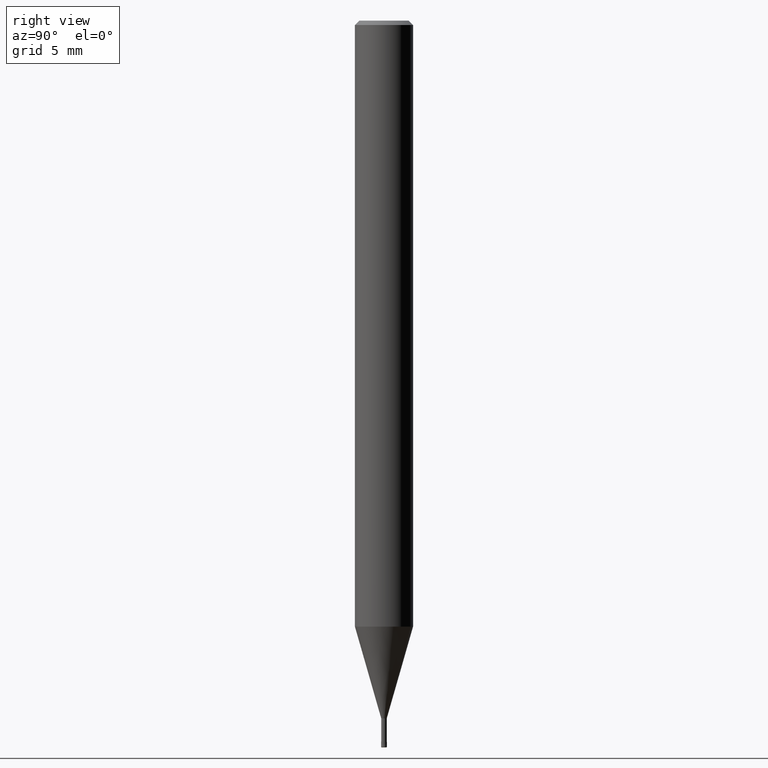
[diagram: clean part render]
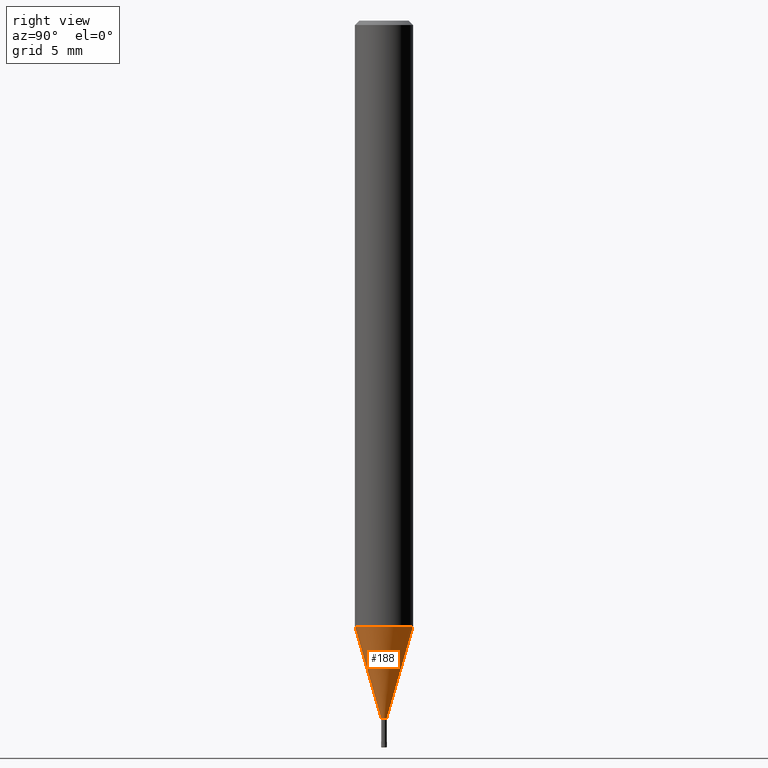
[diagram: same view with one face highlighted and labeled with its STEP entity id]
A machine part, right view. The second image highlights one B-rep face of the part: STEP entity #188.
In plain terms, the highlighted conical surface has half-angle 16.001 deg.
Its self-contained STEP definition (entity closure, byte-faithful):
#110=EDGE_CURVE('',#192,#222,#265,.T.);
#114=EDGE_CURVE('',#192,#148,#269,.T.);
#130=EDGE_CURVE('',#148,#158,#287,.T.);
#148=VERTEX_POINT('',#307);
#158=VERTEX_POINT('',#317);
#188=ADVANCED_FACE('',(#350),#351,.T.);
#192=VERTEX_POINT('',#355);
#222=VERTEX_POINT('',#392);
#224=EDGE_CURVE('',#158,#222,#394,.T.);
#265=CIRCLE('',#434,1.99995);
#269=LINE('',#439,#440);
#287=CIRCLE('',#464,0.18995);
#307=CARTESIAN_POINT('',(0.0,0.18995,-48.0));
#317=CARTESIAN_POINT('',(2.3261397690856E-017,-0.18995,-48.0));
#350=FACE_OUTER_BOUND('',#542,.T.);
#351=CONICAL_SURFACE('',#543,1.09495,0.279261921280279);
#355=CARTESIAN_POINT('',(0.0,1.99995,-41.688));
#392=CARTESIAN_POINT('',(2.44915147732706E-016,-1.99995,-41.688));
#394=LINE('',#595,#596);
#434=AXIS2_PLACEMENT_3D('',#624,#625,#626);
#439=CARTESIAN_POINT('',(-1.34088272711781E-016,1.09495,-44.844));
#440=VECTOR('',#627,1.0);
#464=AXIS2_PLACEMENT_3D('',#652,#653,#654);
#542=EDGE_LOOP('',(#725,#726,#727,#728));
#543=AXIS2_PLACEMENT_3D('',#729,#730,#731);
#595=CARTESIAN_POINT('',(1.34088272711781E-016,-1.09495,-44.844));
#596=VECTOR('',#796,1.0);
#624=CARTESIAN_POINT('',(0.0,0.0,-41.688));
#625=DIRECTION('',(0.0,0.0,-1.0));
#626=DIRECTION('',(0.0,1.0,0.0));
#627=DIRECTION('',(3.37558135426109E-017,-0.275646238787252,-0.961259148743169));
#652=CARTESIAN_POINT('',(0.0,0.0,-48.0));
#653=DIRECTION('',(0.0,0.0,-1.0));
#654=DIRECTION('',(0.0,1.0,0.0));
#725=ORIENTED_EDGE('',*,*,#114,.F.);
#726=ORIENTED_EDGE('',*,*,#110,.T.);
#727=ORIENTED_EDGE('',*,*,#224,.F.);
#728=ORIENTED_EDGE('',*,*,#130,.F.);
#729=CARTESIAN_POINT('',(0.0,0.0,-44.844));
#730=DIRECTION('',(-0.0,-0.0,1.0));
#731=DIRECTION('',(0.0,1.0,0.0));
#796=DIRECTION('',(3.37558135426109E-017,-0.275646238787252,0.961259148743169));